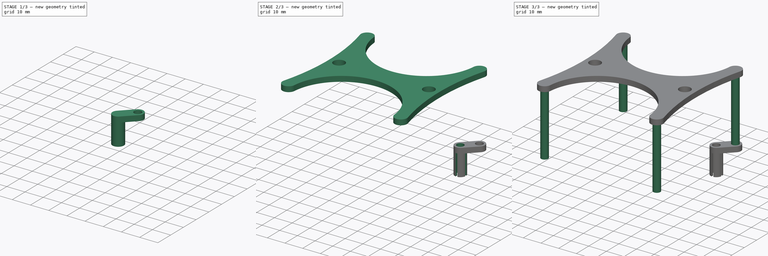
[diagram: build sequence overview — one tinted view per stage of 3, left to right]
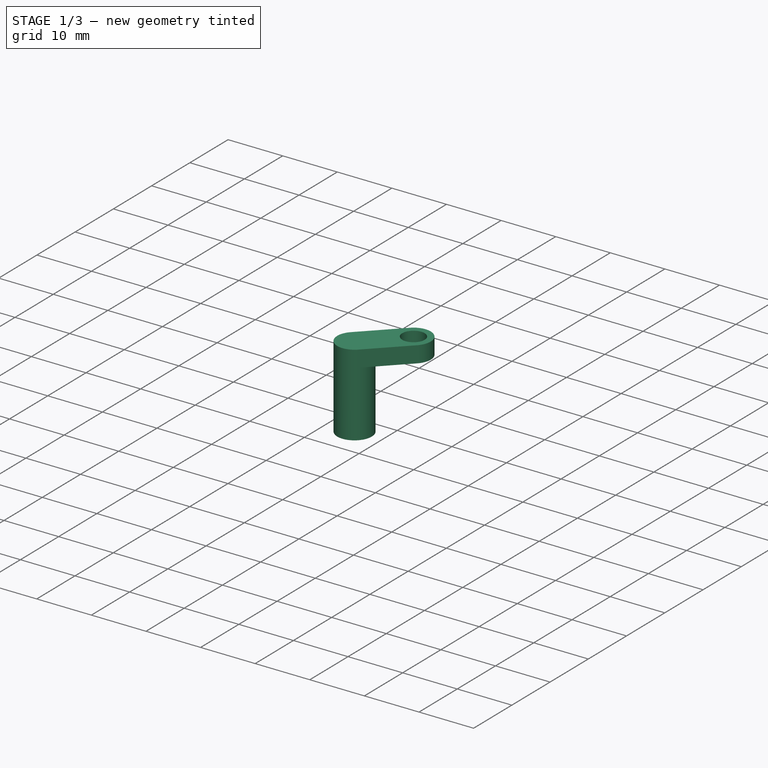
[diagram: stage 1 of 3 — iso view after this stage's code; geometry added in this stage tinted green]
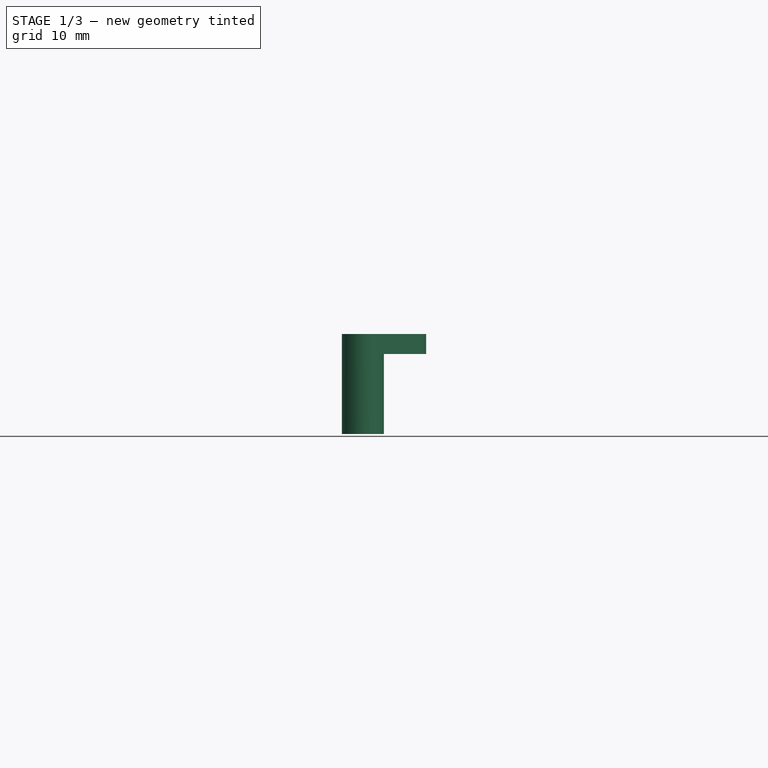
[diagram: stage 1 of 3 — front view after this stage's code; geometry added in this stage tinted green]
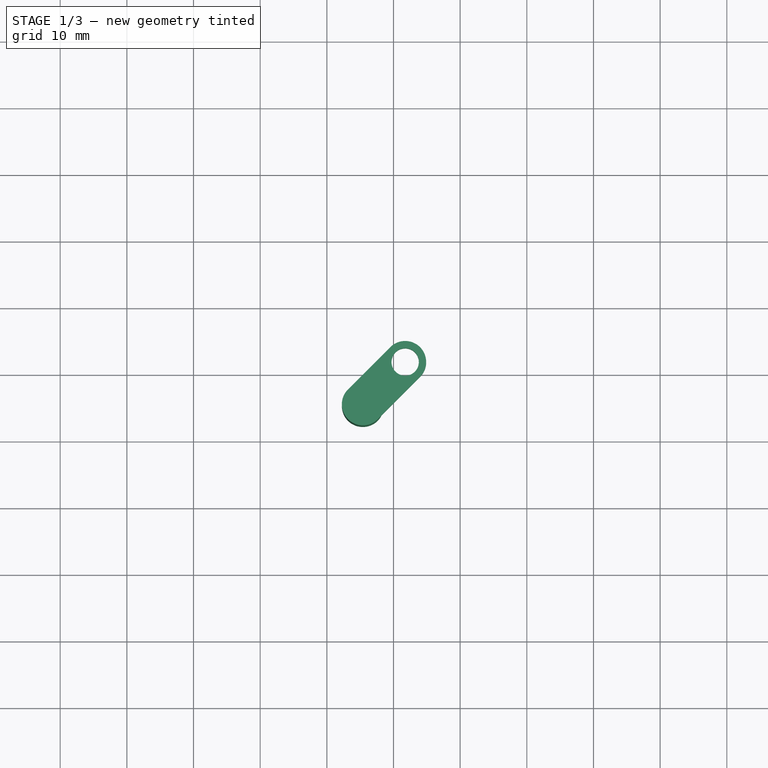
[diagram: stage 1 of 3 — top view after this stage's code; geometry added in this stage tinted green]
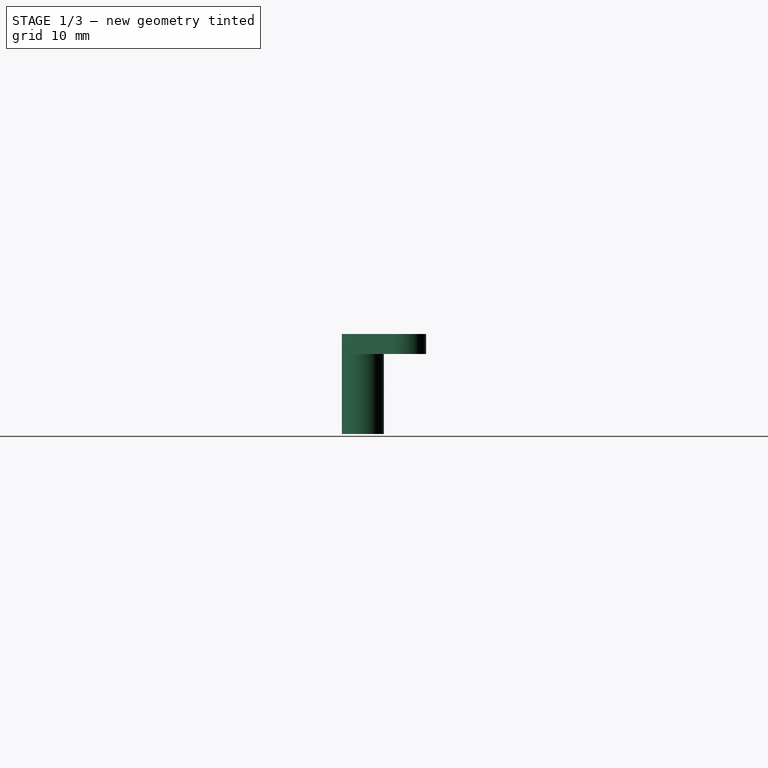
[diagram: stage 1 of 3 — right view after this stage's code; geometry added in this stage tinted green]
FCSTD DOCUMENT  (FreeCAD 0.19R24291 (Git))
Label: Stand_Treadmill_Sphere_Holder
Comment: A stand for the Sphere Holder. It uses a wide footprint to allow a heating mat to be placed below the holder. The feet can be used to position the stand on a breadboard. The feet are printed separatel... (+53 chars)
License: Creative Commons Attribution-NonCommercial-ShareAlike
LicenseURL: http://creativecommons.org/licenses/by-nc-sa/4.0/
objects: Sketcher::SketchObject×5, PartDesign::Pad×4, PartDesign::CoordinateSystem×4, PartDesign::Body×2, PartDesign::ShapeBinder×1, PartDesign::Hole×1, PartDesign::Pocket×1, PartDesign::Fillet×1
note: 26 computed .brp shape members not serialized (recipe doc carries the construction recipe); baked Part::Feature solids carry a one-line shape summary decoded from their .brp

FEATURE [PartDesign::ShapeBinder] CopyPad001
  Placement = pos=(0,0,-35.2) rot=(0,0,1;0rad)
  TraceSupport = false
FEATURE [Sketcher::SketchObject] Sketch002
  ExternalGeometry = -> [CopyPad001]
  FullyConstrained = true
  MapMode = 5
  Placement = pos=(0,0,-35.2) rot=(1,0,0;3.14159rad)
  Support = -> [CopyPad001]
  sketch-geometry (5):
    g0: Circle CenterX=31.75 CenterY=-31.75 CenterZ=0 NormalX=0 NormalY=0 NormalZ=1 AngleXU=0 Radius=2.05
    g1: ArcOfCircle CenterX=31.75 CenterY=-31.75 CenterZ=0 NormalX=0 NormalY=0 NormalZ=1 AngleXU=0 Radius=3.15 StartAngle=3.92699 EndAngle=7.06858
    g2: ArcOfCircle CenterX=25.4 CenterY=-25.4 CenterZ=0 NormalX=0 NormalY=0 NormalZ=1 AngleXU=0 Radius=3.15 StartAngle=0.785398 EndAngle=3.92699
    g3: LineSegment StartX=33.9774 StartY=-29.5226 StartZ=0 EndX=27.6274 EndY=-23.1726 EndZ=0
    g4: LineSegment StartX=29.5226 StartY=-33.9774 StartZ=0 EndX=23.1726 EndY=-27.6274 EndZ=0
  constraints (11):
    c: Tangent(g1,g4) = 1.5708
    c: Tangent(g1,g3) = -1.5708
    c: Tangent(g3,g2) = -1.5708
    c: Tangent(g4,g2) = 1.5708
    c: Equal(g1,g2)
    c: Coincident(g1,g0)
    c: Coincident(g0,g-3)
    c: Diameter(g0) = 4.1
    c: Diameter(g1) = 6.3
    c: DistanceX(g-1,g2) = 25.4
    c: DistanceY(g2,g-1) = 25.4
FEATURE [PartDesign::Pad] Pad002
  Direction = (1,1,1)
  Length = 3
  Length2 = 100
  Placement = pos=(0,0,-35.2) rot=(0,0,1;0rad)
  Profile = -> Sketch002
  Type = 0
FEATURE [Sketcher::SketchObject] Sketch003
  ExternalGeometry = -> [Pad002]
  FullyConstrained = true
  MapMode = 5
  Placement = pos=(0,0,-38.2) rot=(1,0,0;3.14159rad)
  Support = -> [Pad002]
  sketch-geometry (1):
    g0: Circle CenterX=25.4 CenterY=-25.4 CenterZ=0 NormalX=0 NormalY=0 NormalZ=1 AngleXU=0 Radius=3.15
  constraints (2):
    c: Coincident(g0,g-3)
    c: PointOnObject(g-3,g0)
FEATURE [PartDesign::Pad] Pad003
  BaseFeature = -> Pad002
  Direction = (1,1,1)
  Length = 12
  Length2 = 100
  Placement = pos=(0,0,-35.2) rot=(0,0,1;0rad)
  Profile = -> Sketch003
  Type = 0
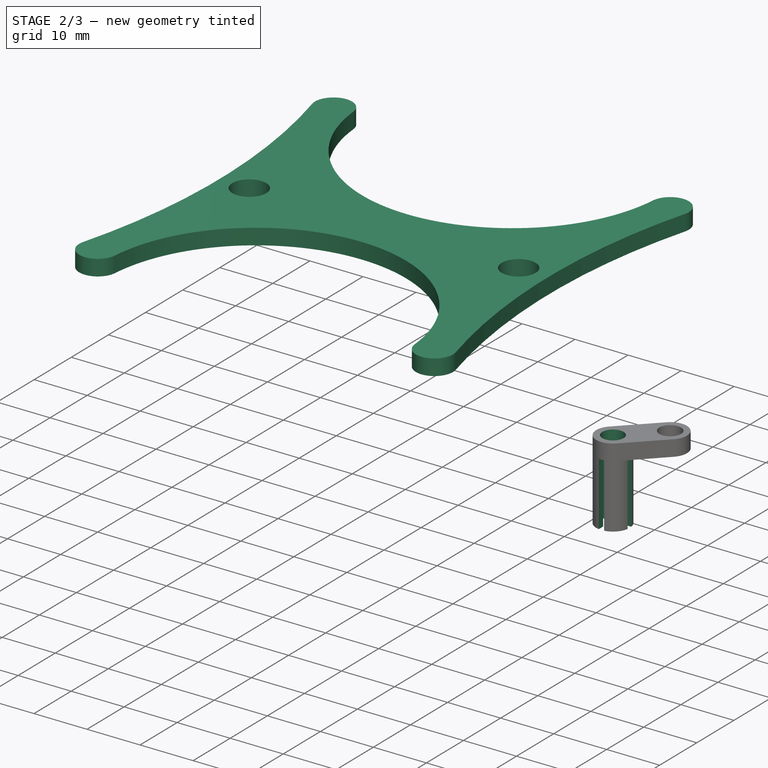
[diagram: stage 2 of 3 — iso view after this stage's code; geometry added in this stage tinted green]
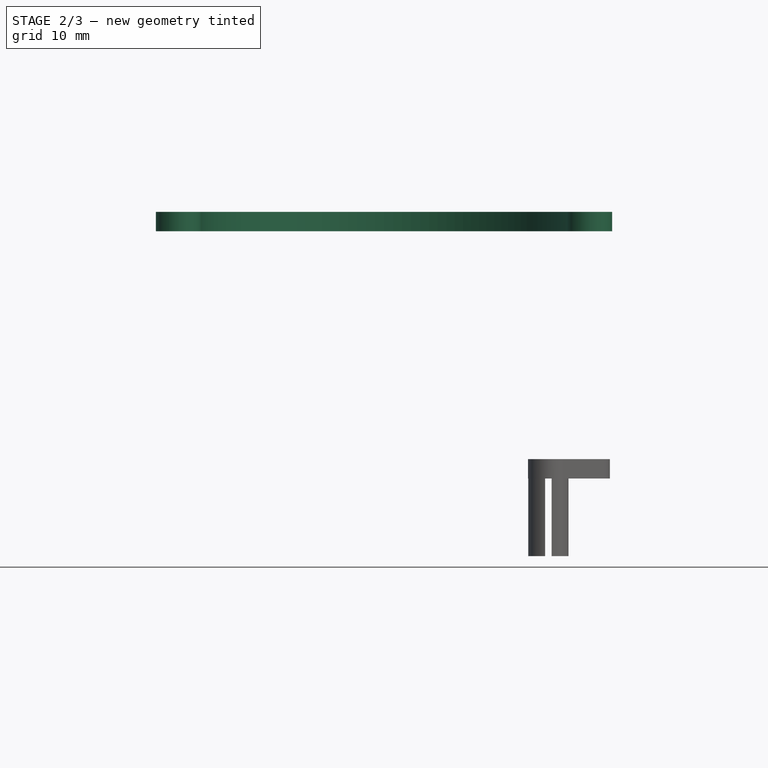
[diagram: stage 2 of 3 — front view after this stage's code; geometry added in this stage tinted green]
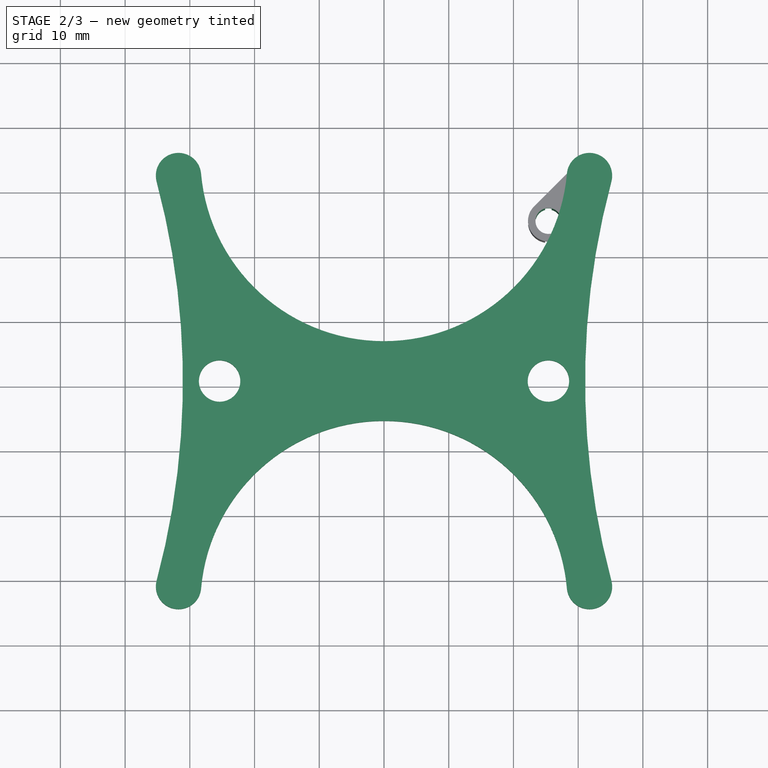
[diagram: stage 2 of 3 — top view after this stage's code; geometry added in this stage tinted green]
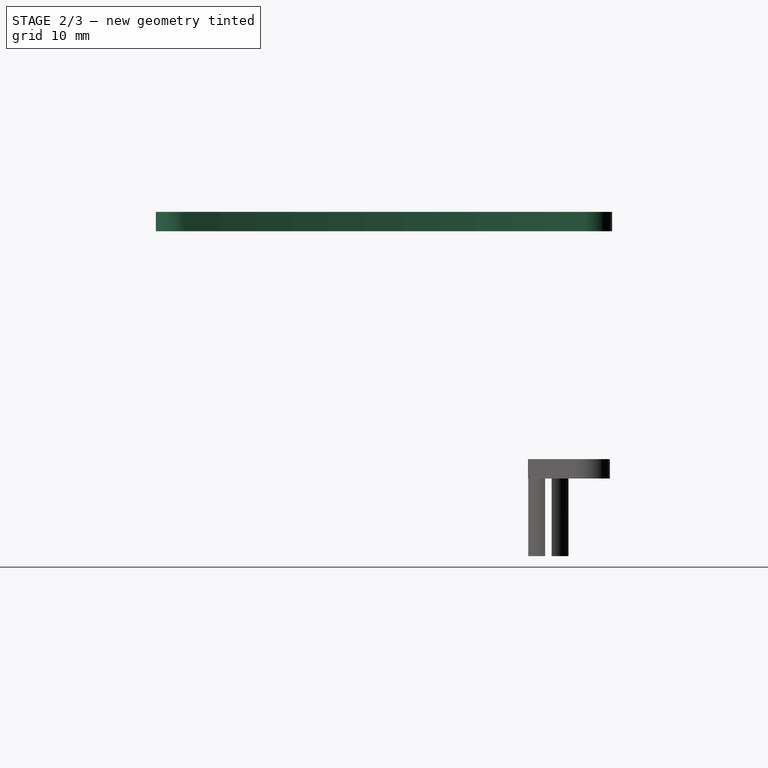
[diagram: stage 2 of 3 — right view after this stage's code; geometry added in this stage tinted green]
FEATURE [Sketcher::SketchObject] Sketch
  FullyConstrained = true
  MapMode = 5
  Support = -> [XY_Plane]
  sketch-geometry (10):
    g0: Circle CenterX=-25.4 CenterY=0 CenterZ=0 NormalX=0 NormalY=0 NormalZ=1 AngleXU=0 Radius=3.2
    g1: Circle CenterX=25.4 CenterY=0 CenterZ=0 NormalX=0 NormalY=0 NormalZ=1 AngleXU=0 Radius=3.2
    g2: ArcOfCircle CenterX=1.6e-15 CenterY=34.5278 CenterZ=0 NormalX=0 NormalY=0 NormalZ=1 AngleXU=0 Radius=28.3713 StartAngle=3.22886 EndAngle=6.19592
    g3: ArcOfCircle CenterX=-31.75 CenterY=31.75 CenterZ=0 NormalX=0 NormalY=0 NormalZ=1 AngleXU=0 Radius=3.5 StartAngle=0.0872665 EndAngle=3.40339
    g4: ArcOfCircle CenterX=31.75 CenterY=31.75 CenterZ=0 NormalX=0 NormalY=0 NormalZ=1 AngleXU=0 Radius=3.5 StartAngle=6.02139 EndAngle=9.33751
    g5: ArcOfCircle CenterX=150.243 CenterY=1.21e-14 CenterZ=0 NormalX=0 NormalY=0 NormalZ=1 AngleXU=0 Radius=119.173 StartAngle=2.87979 EndAngle=3.40339
    g6: ArcOfCircle CenterX=31.75 CenterY=-31.75 CenterZ=0 NormalX=0 NormalY=0 NormalZ=1 AngleXU=0 Radius=3.5 StartAngle=3.22886 EndAngle=6.54498
    g7: ArcOfCircle CenterX=8e-16 CenterY=-34.5278 CenterZ=0 NormalX=0 NormalY=0 NormalZ=1 AngleXU=0 Radius=28.3713 StartAngle=0.0872665 EndAngle=3.05433
    g8: ArcOfCircle CenterX=-31.75 CenterY=-31.75 CenterZ=0 NormalX=0 NormalY=0 NormalZ=1 AngleXU=0 Radius=3.5 StartAngle=2.87979 EndAngle=6.19592
    g9: ArcOfCircle CenterX=-150.243 CenterY=1e-16 CenterZ=0 NormalX=0 NormalY=0 NormalZ=1 AngleXU=0 Radius=119.173 StartAngle=6.02139 EndAngle=6.54498
  constraints (26):
    c: Equal(g0,g1)
    c: Diameter(g0) = 6.4
    c: DistanceX(g0,g1) = 50.8
    c: PointOnObject(g1,g-1)
    c: Symmetric(g1,g0,g-2)
    c: DistanceX(g3,g4) = 63.5
    c: Tangent(g3,g2) = 1.5708
    c: Tangent(g4,g2) = 1.5708
    c: Tangent(g5,g4) = 1.5708
    c: DistanceY(g6,g4) = 63.5
    c: Tangent(g6,g5) = 1.5708
    c: Diameter(g4) = 7
    c: Diameter(g6) = 7
    c: Diameter(g8) = 7
    c: Diameter(g3) = 7
    c: Tangent(g9,g3) = 1.5708
    c: Tangent(g8,g7) = 1.5708
    c: Tangent(g9,g8) = 1.5708
    c: Tangent(g7,g6) = 1.5708
    c: Symmetric(g6,g4,g-1)
    c: Symmetric(g4,g3,g-2)
    c: Symmetric(g8,g6,g-2)
    c: Angle(g9) = 0.523599
    c: Angle(g5) = 0.523599
    c: Angle(g7) = 2.96706
    c: Angle(g2) = 2.96706
FEATURE [PartDesign::Pad] Pad
  Direction = (1,1,1)
  Length = 3
  Length2 = 100
  Profile = -> Sketch
  Type = 0
FEATURE [PartDesign::Hole] Hole
  BaseFeature = -> Pad003
  Depth = 20
  DepthType = 0
  Diameter = 4
  DrillForDepth = false
  DrillPoint = 1
  DrillPointAngle = 118
  HoleCutCountersinkAngle = 90
  HoleCutCustomValues = false
  HoleCutDepth = 0
  HoleCutDiameter = 0
  HoleCutType = 0
  ModelActualThread = false
  Placement = pos=(0,0,-35.2) rot=(0,0,1;0rad)
  Profile = -> Pad003 [Face9]
  Tapered = false
  TaperedAngle = 90
  ThreadAngle = 0
  ThreadClass = 0
  ThreadCutOffInner = 0
  ThreadCutOffOuter = 0
  ThreadDirection = 0
  ThreadFit = 0
  ThreadPitch = 0
  ThreadSize = 0
  ThreadType = 0
  Threaded = false
FEATURE [Sketcher::SketchObject] Sketch004
  FullyConstrained = true
  MapMode = 5
  Placement = pos=(0,0,-50.2) rot=(1,0,0;3.14159rad)
  Support = -> [Hole]
  sketch-geometry (8):
    g0: LineSegment StartX=20 StartY=-24.9 StartZ=0 EndX=30 EndY=-24.9 EndZ=0
    g1: LineSegment StartX=30 StartY=-24.9 StartZ=0 EndX=30 EndY=-25.9 EndZ=0
    g2: LineSegment StartX=30 StartY=-25.9 StartZ=0 EndX=20 EndY=-25.9 EndZ=0
    g3: LineSegment StartX=20 StartY=-25.9 StartZ=0 EndX=20 EndY=-24.9 EndZ=0
    g4: LineSegment StartX=24.9 StartY=-20 StartZ=0 EndX=25.9 EndY=-20 EndZ=0
    g5: LineSegment StartX=25.9 StartY=-20 StartZ=0 EndX=25.9 EndY=-30 EndZ=0
    g6: LineSegment StartX=25.9 StartY=-30 StartZ=0 EndX=24.9 EndY=-30 EndZ=0
    g7: LineSegment StartX=24.9 StartY=-30 StartZ=0 EndX=24.9 EndY=-20 EndZ=0
  constraints (24):
    c: Coincident(g0,g1)
    c: Coincident(g1,g2)
    c: Coincident(g2,g3)
    c: Coincident(g3,g0)
    c: Horizontal(g0)
    c: Horizontal(g2)
    c: Vertical(g1)
    c: Vertical(g3)
    c: Coincident(g4,g5)
    c: Coincident(g5,g6)
    c: Coincident(g6,g7)
    c: Coincident(g7,g4)
    c: Horizontal(g4)
    c: Horizontal(g6)
    c: Vertical(g5)
    c: Vertical(g7)
    c: Distance(g1) = 1
    c: Distance(g4) = 1
    c: DistanceY(g0,g-1) = 24.9
    c: Distance(g0) = 10
    c: DistanceX(g-1,g0) = 20
    c: DistanceX(g-1,g4) = 24.9
    c: DistanceY(g4,g-1) = 20
    c: Distance(g7) = 10
FEATURE [PartDesign::Pocket] Pocket
  BaseFeature = -> Hole
  Length = 12
  Length2 = 100
  Placement = pos=(0,0,-35.2) rot=(0,0,1;0rad)
  Profile = -> Sketch004
  Type = 0
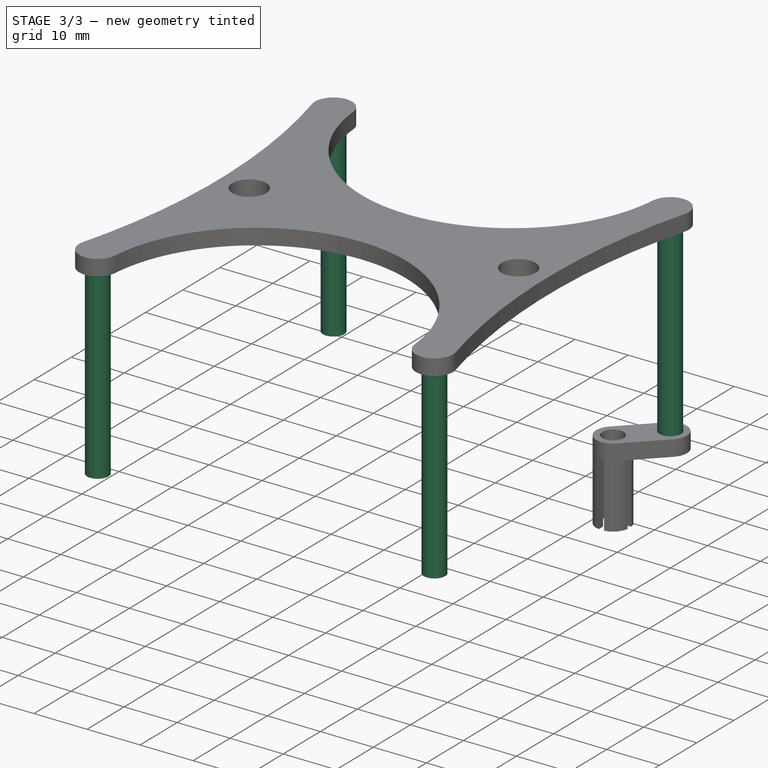
[diagram: stage 3 of 3 — iso view after this stage's code; geometry added in this stage tinted green]
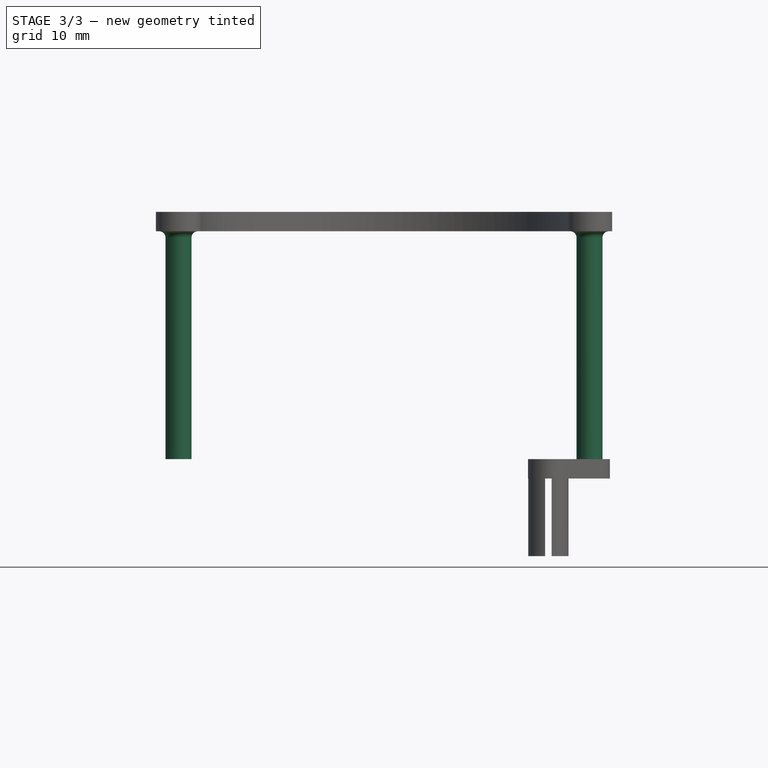
[diagram: stage 3 of 3 — front view after this stage's code; geometry added in this stage tinted green]
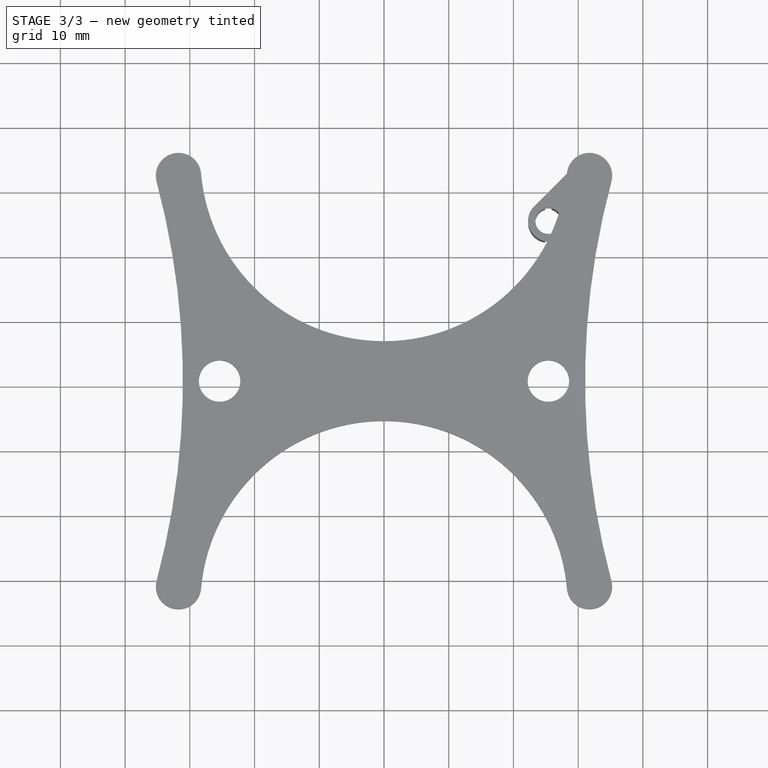
[diagram: stage 3 of 3 — top view after this stage's code; geometry added in this stage tinted green]
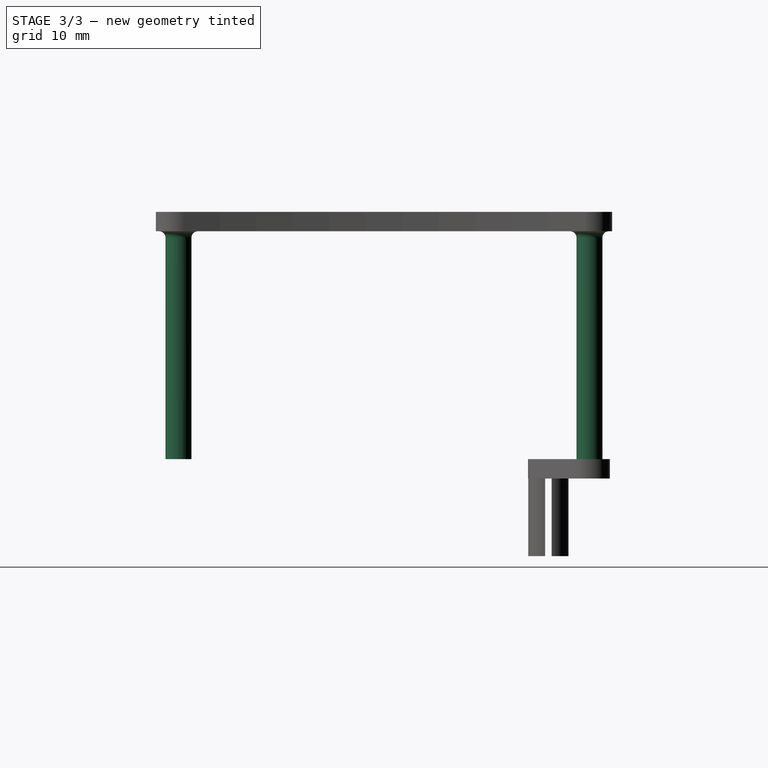
[diagram: stage 3 of 3 — right view after this stage's code; geometry added in this stage tinted green]
FEATURE [Sketcher::SketchObject] Sketch001
  FullyConstrained = true
  MapMode = 5
  Placement = pos=(0,0,0) rot=(1,0,0;3.14159rad)
  sketch-geometry (4):
    g0: Circle CenterX=-31.75 CenterY=31.75 CenterZ=0 NormalX=0 NormalY=0 NormalZ=1 AngleXU=0 Radius=2
    g1: Circle CenterX=31.75 CenterY=31.75 CenterZ=0 NormalX=0 NormalY=0 NormalZ=1 AngleXU=0 Radius=2
    g2: Circle CenterX=-31.75 CenterY=-31.75 CenterZ=0 NormalX=0 NormalY=0 NormalZ=1 AngleXU=0 Radius=2
    g3: Circle CenterX=31.75 CenterY=-31.75 CenterZ=0 NormalX=0 NormalY=0 NormalZ=1 AngleXU=0 Radius=2
  constraints (9):
    c: Equal(g0,g2)
    c: Equal(g2,g3)
    c: Equal(g3,g1)
    c: Diameter(g0) = 4
    c: DistanceX(g0,g1) = 63.5
    c: Symmetric(g0,g1,g-2)
    c: Symmetric(g0,g2,g-1)
    c: DistanceY(g2,g0) = 63.5
    c: Symmetric(g2,g3,g-2)
FEATURE [PartDesign::Pad] Pad001
  BaseFeature = -> Pad
  Direction = (1,1,1)
  Length = 35.2
  Length2 = 100
  Profile = -> Sketch001
  Type = 0
FEATURE [PartDesign::Fillet] Fillet
  Base = -> Pad001 [Edge19,Edge16,Edge21,Edge17]
  BaseFeature = -> Pad001
  Radius = 1
  SupportTransform = false
FEATURE [PartDesign::CoordinateSystem] LCS_Base
  AttacherType = Attacher::AttachEngine3D
  MapMode = 45
  Placement = pos=(31.75,-31.75,-35.2) rot=(0,0,1;0rad)
  Support = -> [Fillet]
FEATURE [PartDesign::CoordinateSystem] LCS_Top
  AttacherType = Attacher::AttachEngine3D
  MapMode = 45
  Placement = pos=(-25.4,1e-16,3) rot=(0,0,1;0rad)
  Support = -> [Fillet]
FEATURE [PartDesign::Body] Body  label="Stand"
  Group = -> [Sketch,Pad,Sketch001,Pad001,Fillet,LCS_Base,LCS_Top]
  Origin = -> Origin
  Tip = -> Fillet
FEATURE [PartDesign::CoordinateSystem] LCS_Foot_Base
  AttacherType = Attacher::AttachEngine3D
  AttachmentOffset = pos=(-1,0.6,0) rot=(0,0,1;0.366519rad)
  MapMode = 45
  Placement = pos=(25.3288,25.2836,-38.2) rot=(0,0,1;1.56983rad)
  Support = -> [Pocket]
FEATURE [PartDesign::CoordinateSystem] LCS_Top001
  AttacherType = Attacher::AttachEngine3D
  MapMode = 45
  Placement = pos=(31.75,31.75,-38.2) rot=(0,0,-1;1e-05rad)
  Support = -> [Pocket]
FEATURE [PartDesign::Body] Body001  label="Stand_Foot"
  Group = -> [CopyPad001,Sketch002,Pad002,Sketch003,Pad003,Hole,Sketch004,Pocket,LCS_Foot_Base,LCS_Top001]
  Origin = -> Origin001
  Tip = -> Pocket
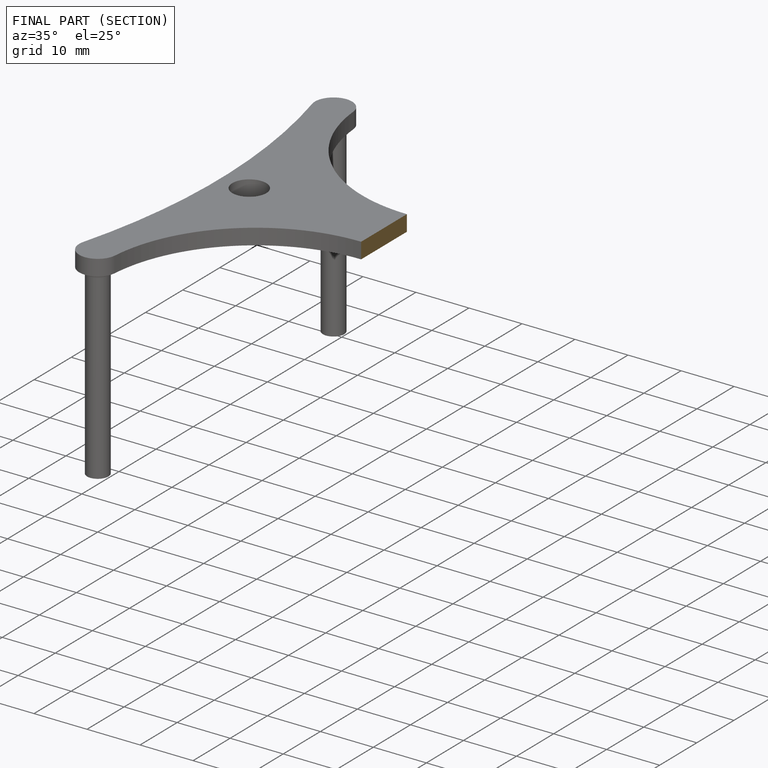
[diagram: finished part — half-section view (interior)]
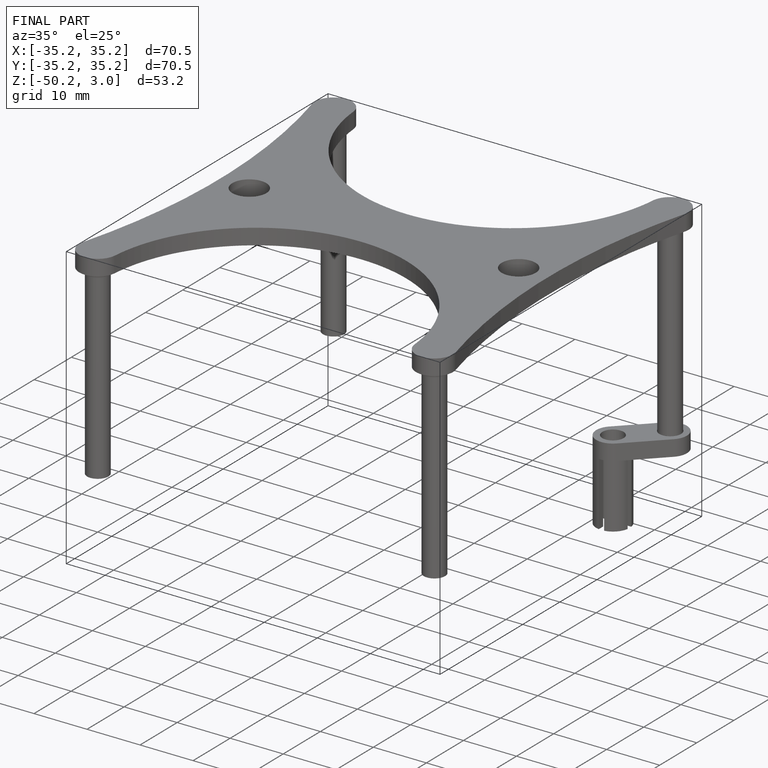
[diagram: finished part — iso view with bounding-box wireframe]
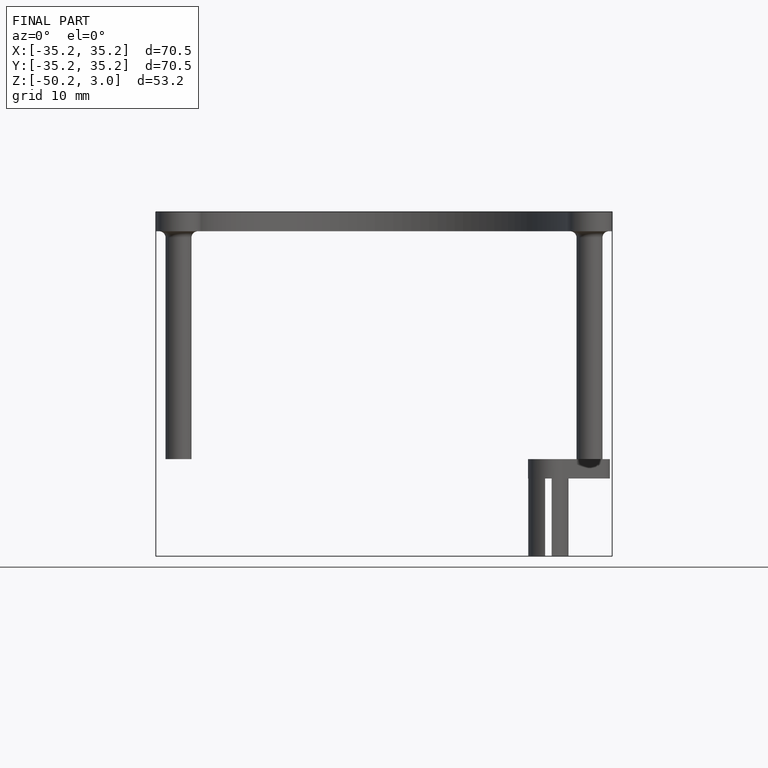
[diagram: finished part — front view with bounding-box wireframe]
